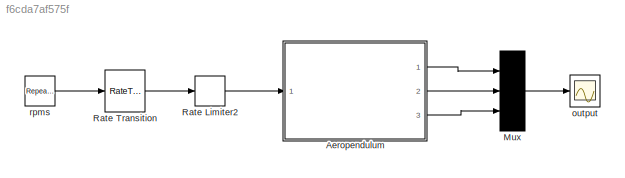
MODEL slx_f6cda7af575f
KIND model
CONFIG AbsTol = auto
CONFIG EnableMultiTasking = off
CONFIG FixedStep = auto
CONFIG MaxStep = auto
CONFIG MinStep = auto
CONFIG RelTol = 1e-3
CONFIG SampleTimeConstraint = Unconstrained
CONFIG SolverName = VariableStepAuto
CONFIG StartTime = 0.0
CONFIG StopTime = 10.0
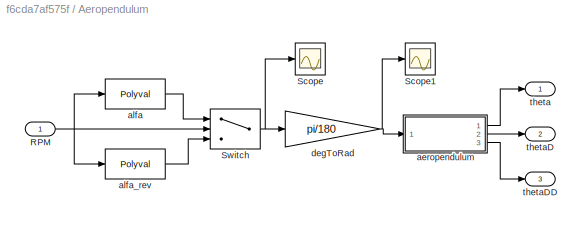
BLOCK [SubSystem] Aeropendulum
  Ports = [1, 3]
  RequestExecContextInheritance = off
BLOCK [Inport] Aeropendulum/RPM
BLOCK [Scope] Aeropendulum/Scope
  Floating = off
  NumInputPorts = 1
  Ports = [1]
  ScopeSpecificationString = Simulink.scopes.TimeScopeBlockCfg('CurrentConfiguration', extmgr.ConfigurationSet(extmgr.Configuration('Core','General UI',true),extmgr.Configuration('Core','Source UI',true),extmgr.Configuration('Sources','WiredSimulink',true,'DataLoggingVariableName','ScopeData1'),extmgr.Configuration('Visuals','Time Domain',true,'SerializedDisplays',{struct('MinYLimReal','-95.79137','MaxYLimReal','75.66645','YL...<+1396ch>
BLOCK [Scope] Aeropendulum/Scope1
  Floating = off
  NumInputPorts = 1
  Ports = [1]
  ScopeSpecificationString = Simulink.scopes.TimeScopeBlockCfg('CurrentConfiguration', extmgr.ConfigurationSet(extmgr.Configuration('Core','General UI',true),extmgr.Configuration('Core','Source UI',true),extmgr.Configuration('Sources','WiredSimulink',true,'DataLoggingVariableName','ScopeData2'),extmgr.Configuration('Visuals','Time Domain',true,'SerializedDisplays',{struct('MinYLimReal','-1.67187','MaxYLimReal','1.32063','YLab...<+1392ch>
BLOCK [Switch] Aeropendulum/Switch
  Criteria = u2 > Threshold
  InputSameDT = off
  SaturateOnIntegerOverflow = off
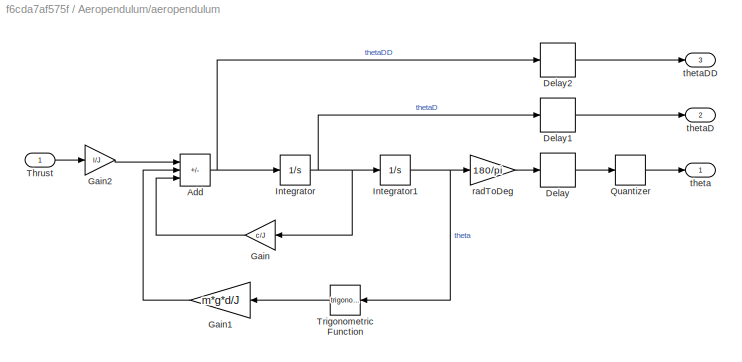
BLOCK [SubSystem] Aeropendulum/aeropendulum
  Ports = [1, 3]
  RequestExecContextInheritance = off
BLOCK [Sum] Aeropendulum/aeropendulum/Add
  IconShape = rectangular
  Inputs = +--
  Ports = [3, 1]
BLOCK [Delay] Aeropendulum/aeropendulum/Delay
  DelayLength = 1
  InitialCondition = 0
  InputPortMap = u0
  Ports = [1, 1]
BLOCK [Delay] Aeropendulum/aeropendulum/Delay1
  DelayLength = 1
  InitialCondition = 0
  InputPortMap = u0
  Ports = [1, 1]
BLOCK [Delay] Aeropendulum/aeropendulum/Delay2
  DelayLength = 1
  InitialCondition = 0
  InputPortMap = u0
  Ports = [1, 1]
BLOCK [Gain] Aeropendulum/aeropendulum/Gain
  Gain = c/J
BLOCK [Gain] Aeropendulum/aeropendulum/Gain1
  Gain = m*g*d/J
BLOCK [Gain] Aeropendulum/aeropendulum/Gain2
  Gain = l/J
BLOCK [Integrator] Aeropendulum/aeropendulum/Integrator
  Ports = [1, 1]
BLOCK [Integrator] Aeropendulum/aeropendulum/Integrator1
  Ports = [1, 1]
BLOCK [Quantizer] Aeropendulum/aeropendulum/Quantizer
  QuantizationInterval = 0.08791209
BLOCK [Inport] Aeropendulum/aeropendulum/Thrust
BLOCK [Trigonometry] Aeropendulum/aeropendulum/Trigonometric Function
  Ports = [1, 1]
BLOCK [Gain] Aeropendulum/aeropendulum/radToDeg
  Gain = 180/pi
BLOCK [Outport] Aeropendulum/aeropendulum/theta
BLOCK [Outport] Aeropendulum/aeropendulum/thetaD
  Port = 2
BLOCK [Outport] Aeropendulum/aeropendulum/thetaDD
  Port = 3
BLOCK [Polyval] Aeropendulum/alfa
  Coefs = [3.04986021927422e-06,  -0.00476887717971010 , 2.51670431281220]
BLOCK [Polyval] Aeropendulum/alfa_rev
  Coefs = [-5.46944010985214e-06,	-0.00938361577873603,	-2.43262552689868]
BLOCK [Gain] Aeropendulum/degToRad
  Gain = pi/180
BLOCK [Outport] Aeropendulum/theta
BLOCK [Outport] Aeropendulum/thetaD
  Port = 2
BLOCK [Outport] Aeropendulum/thetaDD
  Port = 3
BLOCK [Mux] Mux
  DisplayOption = bar
  Inputs = 3
  Ports = [3, 1]
BLOCK [RateLimiter] Rate Limiter2
  FallingSlewLimit = -Rs
  RisingSlewLimit = Rs
  SampleTimeMode = inherited
BLOCK [RateTransition] Rate Transition
  InitialCondition = 10
  OutPortSampleTime = Ts
BLOCK [Scope] output
  Floating = off
  NumInputPorts = 1
  Ports = [1]
  ScopeSpecificationString = Simulink.scopes.TimeScopeBlockCfg('CurrentConfiguration', extmgr.ConfigurationSet(extmgr.Configuration('Core','General UI',true),extmgr.Configuration('Core','Source UI',true),extmgr.Configuration('Sources','WiredSimulink',true,'DataLoggingVariableName','ScopeData1'),extmgr.Configuration('Visuals','Time Domain',true,'SerializedDisplays',{struct('MinYLimReal','-36.17341','MaxYLimReal','4.01926','YLa...<+1442ch>
BLOCK [Reference] rpms  REF=simulink/Sources/Repeating
Sequence
Stair
  Ports = [0, 1]
  SourceBlock = simulink/Sources/Repeating\nSequence\nStair
  SourceProductBaseCode = SL
  SourceType = Repeating Sequence Stair
NET Aeropendulum/RPM:1 -> Aeropendulum/Switch:2, Aeropendulum/alfa:1, Aeropendulum/alfa_rev:1
NET Aeropendulum/Switch:1 -> Aeropendulum/Scope:1, Aeropendulum/degToRad:1
NET Aeropendulum/aeropendulum/Add:1 -> Aeropendulum/aeropendulum/Delay2:1, Aeropendulum/aeropendulum/Integrator:1
LINE Aeropendulum/aeropendulum/Delay1:1 -> Aeropendulum/aeropendulum/thetaD:1
LINE Aeropendulum/aeropendulum/Delay2:1 -> Aeropendulum/aeropendulum/thetaDD:1
LINE Aeropendulum/aeropendulum/Delay:1 -> Aeropendulum/aeropendulum/Quantizer:1
LINE Aeropendulum/aeropendulum/Gain1:1 -> Aeropendulum/aeropendulum/Add:2
LINE Aeropendulum/aeropendulum/Gain2:1 -> Aeropendulum/aeropendulum/Add:1
LINE Aeropendulum/aeropendulum/Gain:1 -> Aeropendulum/aeropendulum/Add:3
NET Aeropendulum/aeropendulum/Integrator1:1 -> Aeropendulum/aeropendulum/Trigonometric Function:1, Aeropendulum/aeropendulum/radToDeg:1
NET Aeropendulum/aeropendulum/Integrator:1 -> Aeropendulum/aeropendulum/Delay1:1, Aeropendulum/aeropendulum/Gain:1, Aeropendulum/aeropendulum/Integrator1:1
LINE Aeropendulum/aeropendulum/Quantizer:1 -> Aeropendulum/aeropendulum/theta:1
LINE Aeropendulum/aeropendulum/Thrust:1 -> Aeropendulum/aeropendulum/Gain2:1
LINE Aeropendulum/aeropendulum/Trigonometric Function:1 -> Aeropendulum/aeropendulum/Gain1:1
LINE Aeropendulum/aeropendulum/radToDeg:1 -> Aeropendulum/aeropendulum/Delay:1
LINE Aeropendulum/aeropendulum:1 -> Aeropendulum/theta:1
LINE Aeropendulum/aeropendulum:2 -> Aeropendulum/thetaD:1
LINE Aeropendulum/aeropendulum:3 -> Aeropendulum/thetaDD:1
LINE Aeropendulum/alfa:1 -> Aeropendulum/Switch:1
LINE Aeropendulum/alfa_rev:1 -> Aeropendulum/Switch:3
NET Aeropendulum/degToRad:1 -> Aeropendulum/Scope1:1, Aeropendulum/aeropendulum:1
LINE Aeropendulum:1 -> Mux:1
LINE Aeropendulum:2 -> Mux:2
LINE Aeropendulum:3 -> Mux:3
LINE Mux:1 -> output:1
LINE Rate Limiter2:1 -> Aeropendulum:1
LINE Rate Transition:1 -> Rate Limiter2:1
LINE rpms:1 -> Rate Transition:1
note: NET lines group one-source signal fan-out (src -> all destinations, sorted); 1:1 wires keep LINE
